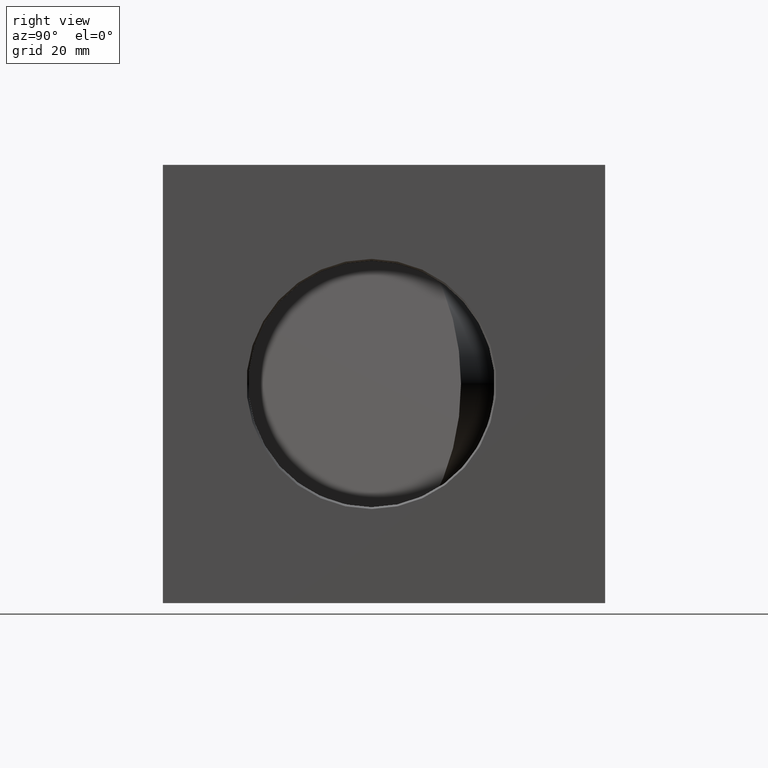
[diagram: clean part render]
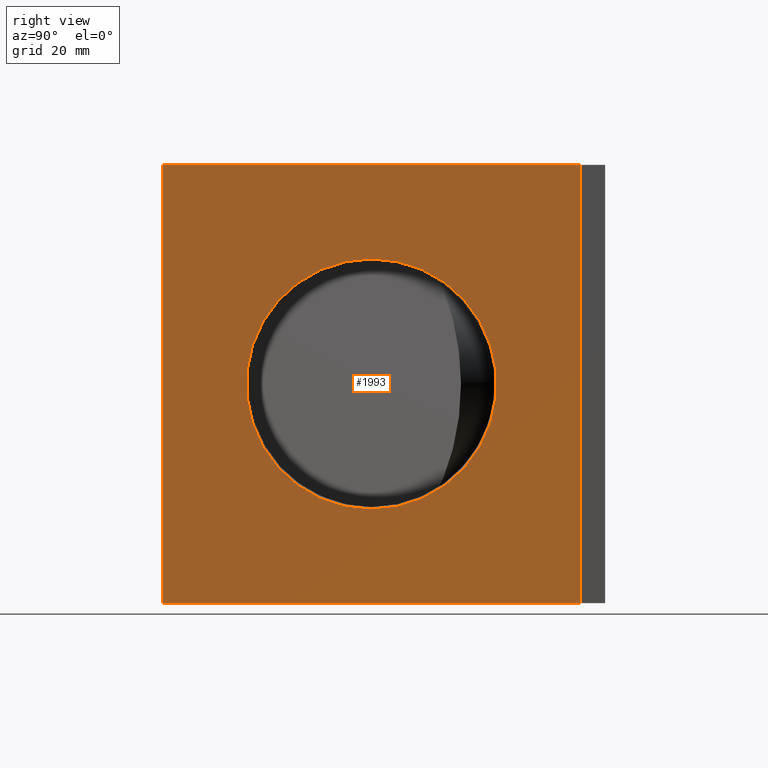
[diagram: same view with one face highlighted and labeled with its STEP entity id]
A machine part, right view. The second image highlights one B-rep face of the part: STEP entity #1993.
In plain terms, the highlighted planar face has unit normal (-1, 0, 0).
Its self-contained STEP definition (entity closure, byte-faithful):
#1517 = VERTEX_POINT ( 'NONE', #14977 ) ;
#1580 = VERTEX_POINT ( 'NONE', #15066 ) ;
#1648 = EDGE_CURVE ( 'NONE', #1580, #1517, #15262, .T. ) ;
#1993 = ADVANCED_FACE ( 'NONE', ( #15954, #15953 ), #15992, .F. ) ;
#1994 = EDGE_LOOP ( 'NONE', ( #1995, #1996 ) ) ;
#1995 = ORIENTED_EDGE ( 'NONE', *, *, #1648, .T. ) ;
#1996 = ORIENTED_EDGE ( 'NONE', *, *, #1997, .T. ) ;
#1997 = EDGE_CURVE ( 'NONE', #1517, #1580, #15987, .T. ) ;
#1999 = EDGE_LOOP ( 'NONE', ( #2001, #2098, #2102, #2106 ) ) ;
#2001 = ORIENTED_EDGE ( 'NONE', *, *, #2003, .T. ) ;
#2003 = EDGE_CURVE ( 'NONE', #2005, #2007, #16043, .T. ) ;
#2005 = VERTEX_POINT ( 'NONE', #16039 ) ;
#2007 = VERTEX_POINT ( 'NONE', #16038 ) ;
#2098 = ORIENTED_EDGE ( 'NONE', *, *, #2099, .F. ) ;
#2099 = EDGE_CURVE ( 'NONE', #2101, #2007, #16201, .T. ) ;
#2101 = VERTEX_POINT ( 'NONE', #16197 ) ;
#2102 = ORIENTED_EDGE ( 'NONE', *, *, #2104, .F. ) ;
#2104 = EDGE_CURVE ( 'NONE', #2105, #2101, #16196, .T. ) ;
#2105 = VERTEX_POINT ( 'NONE', #16192 ) ;
#2106 = ORIENTED_EDGE ( 'NONE', *, *, #2107, .T. ) ;
#2107 = EDGE_CURVE ( 'NONE', #2105, #2005, #16190, .T. ) ;
#14977 = CARTESIAN_POINT ( 'NONE',  ( 3.783458390377921500, 2.362681264191447200, 4.123818899881898800 ) ) ;
#15066 = CARTESIAN_POINT ( 'NONE',  ( 3.783458390377921500, 2.362681264191446800, 1.126181100118100600 ) ) ;
#15258 = DIRECTION ( 'NONE',  ( 0.0000000000000000000, 0.0000000000000000000, 1.000000000000000000 ) ) ;
#15259 = DIRECTION ( 'NONE',  ( -1.000000000000000000, 0.0000000000000000000, 0.0000000000000000000 ) ) ;
#15260 = CARTESIAN_POINT ( 'NONE',  ( 3.783458390377921500, 2.362681264191446800, 2.624999999999999600 ) ) ;
#15261 = AXIS2_PLACEMENT_3D ( 'NONE', #15260, #15259, #15258 ) ;
#15262 = CIRCLE ( 'NONE', #15261, 1.498818899881899000 ) ;
#15953 = FACE_OUTER_BOUND ( 'NONE', #1999, .T. ) ;
#15954 = FACE_BOUND ( 'NONE', #1994, .T. ) ;
#15984 = DIRECTION ( 'NONE',  ( -1.000000000000000000, 0.0000000000000000000, 0.0000000000000000000 ) ) ;
#15985 = CARTESIAN_POINT ( 'NONE',  ( 3.783458390377921500, 2.362681264191446800, 2.624999999999999600 ) ) ;
#15986 = AXIS2_PLACEMENT_3D ( 'NONE', #15985, #15984, #16044 ) ;
#15987 = CIRCLE ( 'NONE', #15986, 1.498818899881899000 ) ;
#15988 = DIRECTION ( 'NONE',  ( 0.0000000000000000000, 0.0000000000000000000, 1.000000000000000000 ) ) ;
#15989 = DIRECTION ( 'NONE',  ( -1.000000000000000000, 0.0000000000000000000, 0.0000000000000000000 ) ) ;
#15990 = CARTESIAN_POINT ( 'NONE',  ( 3.783458390377921500, -0.1373187358085533000, 5.250000000000000000 ) ) ;
#15991 = AXIS2_PLACEMENT_3D ( 'NONE', #15990, #15989, #15988 ) ;
#15992 = PLANE ( 'NONE',  #15991 ) ;
#16038 = CARTESIAN_POINT ( 'NONE',  ( 3.783458390377921500, 4.862681264191446800, 0.0000000000000000000 ) ) ;
#16039 = CARTESIAN_POINT ( 'NONE',  ( 3.783458390377921500, -0.1373187358085533000, 0.0000000000000000000 ) ) ;
#16040 = DIRECTION ( 'NONE',  ( 0.0000000000000000000, 1.000000000000000000, 0.0000000000000000000 ) ) ;
#16041 = VECTOR ( 'NONE', #16040, 39.37007874015748100 ) ;
#16042 = CARTESIAN_POINT ( 'NONE',  ( 3.783458390377921500, -0.1373187358085533000, 0.0000000000000000000 ) ) ;
#16043 = LINE ( 'NONE', #16042, #16041 ) ;
#16044 = DIRECTION ( 'NONE',  ( 0.0000000000000000000, 0.0000000000000000000, 1.000000000000000000 ) ) ;
#16187 = DIRECTION ( 'NONE',  ( 0.0000000000000000000, 0.0000000000000000000, -1.000000000000000000 ) ) ;
#16188 = VECTOR ( 'NONE', #16187, 39.37007874015748100 ) ;
#16189 = CARTESIAN_POINT ( 'NONE',  ( 3.783458390377921500, -0.1373187358085533000, 5.250000000000000000 ) ) ;
#16190 = LINE ( 'NONE', #16189, #16188 ) ;
#16192 = CARTESIAN_POINT ( 'NONE',  ( 3.783458390377921500, -0.1373187358085533000, 5.250000000000000000 ) ) ;
#16193 = DIRECTION ( 'NONE',  ( 0.0000000000000000000, 1.000000000000000000, 0.0000000000000000000 ) ) ;
#16194 = VECTOR ( 'NONE', #16193, 39.37007874015748100 ) ;
#16195 = CARTESIAN_POINT ( 'NONE',  ( 3.783458390377921500, -0.1373187358085533000, 5.250000000000000000 ) ) ;
#16196 = LINE ( 'NONE', #16195, #16194 ) ;
#16197 = CARTESIAN_POINT ( 'NONE',  ( 3.783458390377921500, 4.862681264191446800, 5.250000000000000000 ) ) ;
#16198 = DIRECTION ( 'NONE',  ( 0.0000000000000000000, 0.0000000000000000000, -1.000000000000000000 ) ) ;
#16199 = VECTOR ( 'NONE', #16198, 39.37007874015748100 ) ;
#16200 = CARTESIAN_POINT ( 'NONE',  ( 3.783458390377921500, 4.862681264191446800, 5.250000000000000000 ) ) ;
#16201 = LINE ( 'NONE', #16200, #16199 ) ;